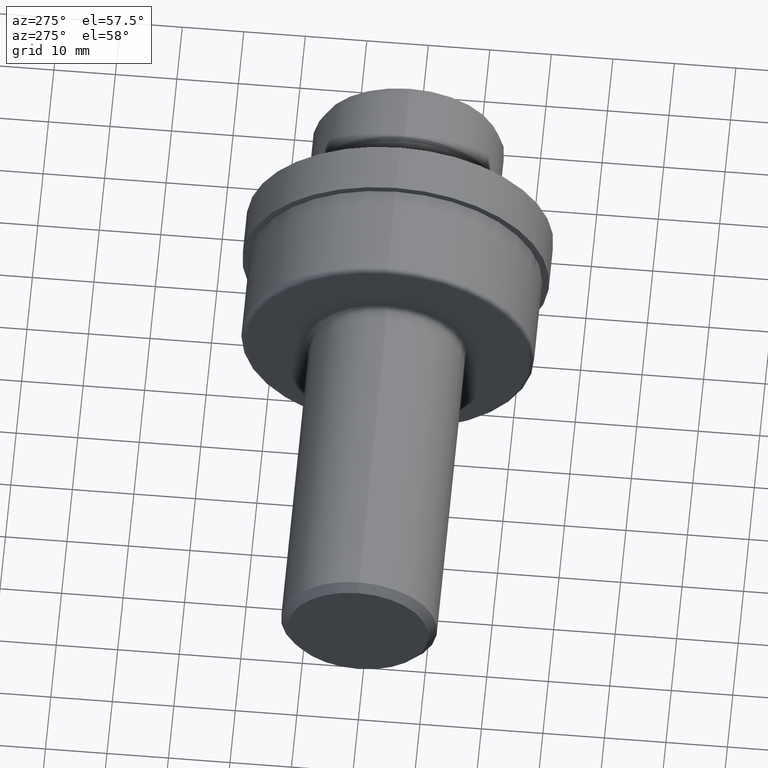
[diagram: clean part render]
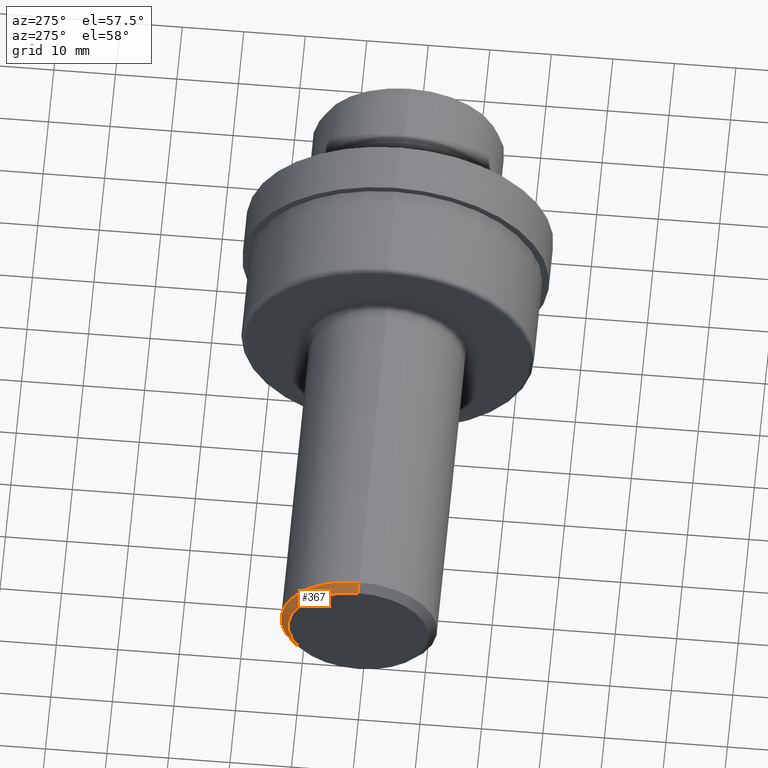
[diagram: same view with one face highlighted and labeled with its STEP entity id]
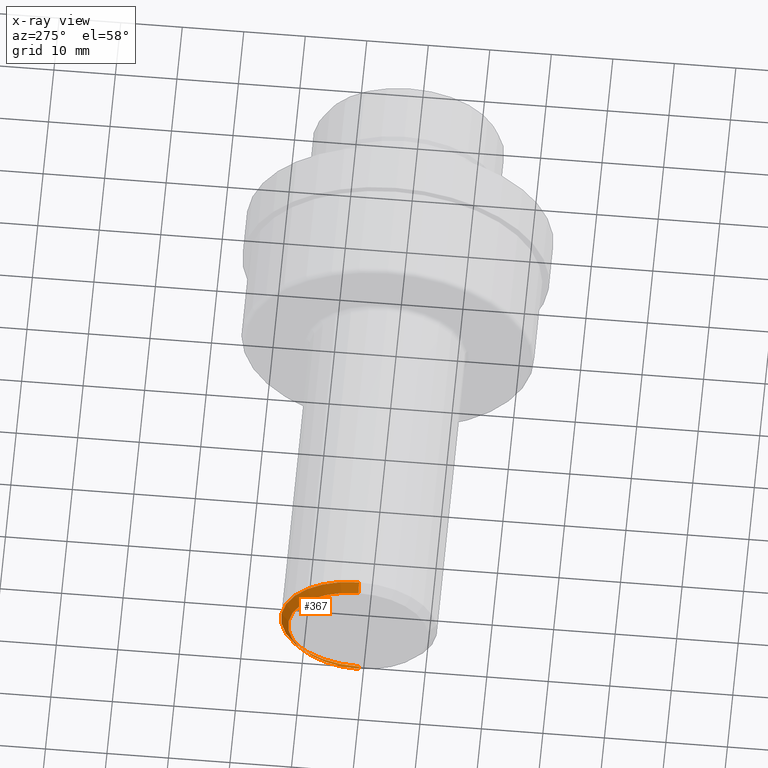
[diagram: x-ray of the same camera — body ghosted, the highlighted face saturated]
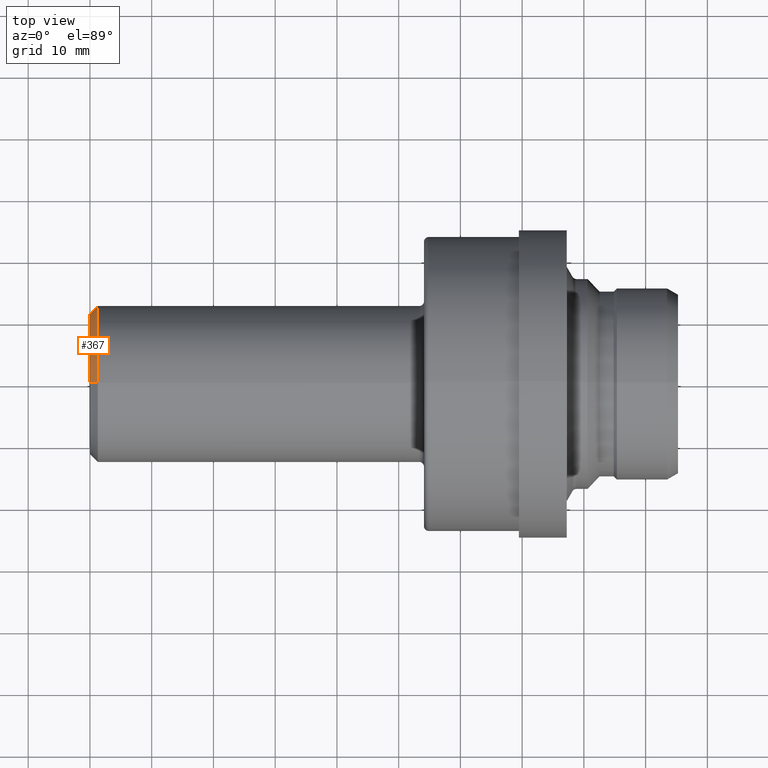
[diagram: same view with one face highlighted and labeled with its STEP entity id]
A machine part, auxiliary view. The second image highlights one B-rep face of the part: STEP entity #367.
The next image is the same camera in x-ray: the body ghosted, the highlighted face saturated — about 0% of this face is hidden behind the body in this view.
A second angle (top view) of the same face is appended — the face is thin or edge-on in the first view.
In plain terms, the highlighted conical surface has half-angle 45 deg.
Its self-contained STEP definition (entity closure, byte-faithful):
#41 = DIRECTION ( 'NONE',  ( 0.0000000000000000000, 0.0000000000000000000, 1.000000000000000000 ) ) ;
#65 = CONICAL_SURFACE ( 'NONE', #737, 0.4998500000000000165, 0.7853981633974463916 ) ;
#115 = VERTEX_POINT ( 'NONE', #545 ) ;
#135 = DIRECTION ( 'NONE',  ( 0.0000000000000000000, 0.0000000000000000000, 1.000000000000000000 ) ) ;
#141 = CARTESIAN_POINT ( 'NONE',  ( 0.05000000000000000278, 0.0000000000000000000, 0.0000000000000000000 ) ) ;
#151 = CARTESIAN_POINT ( 'NONE',  ( 0.0000000000000000000, 0.0000000000000000000, -0.4498500000000001942 ) ) ;
#157 = DIRECTION ( 'NONE',  ( -1.000000000000000000, -0.0000000000000000000, -0.0000000000000000000 ) ) ;
#179 = DIRECTION ( 'NONE',  ( -1.000000000000000000, -0.0000000000000000000, -0.0000000000000000000 ) ) ;
#235 = DIRECTION ( 'NONE',  ( 1.000000000000000000, 0.0000000000000000000, 0.0000000000000000000 ) ) ;
#247 = ORIENTED_EDGE ( 'NONE', *, *, #893, .F. ) ;
#264 = ORIENTED_EDGE ( 'NONE', *, *, #727, .T. ) ;
#265 = ORIENTED_EDGE ( 'NONE', *, *, #744, .F. ) ;
#289 = CIRCLE ( 'NONE', #865, 0.4498500000000001942 ) ;
#303 = DIRECTION ( 'NONE',  ( 0.0000000000000000000, 0.0000000000000000000, -1.000000000000000000 ) ) ;
#325 = ORIENTED_EDGE ( 'NONE', *, *, #410, .T. ) ;
#367 = ADVANCED_FACE ( 'NONE', ( #605 ), #65, .T. ) ;
#410 = EDGE_CURVE ( 'NONE', #469, #115, #482, .T. ) ;
#437 = VECTOR ( 'NONE', #650, 39.37007874015748143 ) ;
#466 = VERTEX_POINT ( 'NONE', #536 ) ;
#469 = VERTEX_POINT ( 'NONE', #567 ) ;
#482 = LINE ( 'NONE', #850, #437 ) ;
#483 = CIRCLE ( 'NONE', #655, 0.4998500000000000165 ) ;
#536 = CARTESIAN_POINT ( 'NONE',  ( 0.05000000000000000278, 6.121397025538045565E-17, -0.4998500000000000165 ) ) ;
#545 = CARTESIAN_POINT ( 'NONE',  ( 0.05000000000000000278, 0.0000000000000000000, 0.4998500000000000165 ) ) ;
#564 = LINE ( 'NONE', #758, #892 ) ;
#567 = CARTESIAN_POINT ( 'NONE',  ( 0.0000000000000000000, 5.815235325751207941E-17, 0.4498500000000001942 ) ) ;
#605 = FACE_OUTER_BOUND ( 'NONE', #816, .T. ) ;
#650 = DIRECTION ( 'NONE',  ( 0.7071067811865489050, 8.659560562354915602E-17, 0.7071067811865461294 ) ) ;
#655 = AXIS2_PLACEMENT_3D ( 'NONE', #705, #157, #135 ) ;
#676 = VERTEX_POINT ( 'NONE', #151 ) ;
#705 = CARTESIAN_POINT ( 'NONE',  ( 0.05000000000000000278, 0.0000000000000000000, 0.0000000000000000000 ) ) ;
#727 = EDGE_CURVE ( 'NONE', #115, #466, #483, .T. ) ;
#737 = AXIS2_PLACEMENT_3D ( 'NONE', #141, #235, #303 ) ;
#744 = EDGE_CURVE ( 'NONE', #469, #676, #289, .T. ) ;
#758 = CARTESIAN_POINT ( 'NONE',  ( 0.05000000000000000278, 0.0000000000000000000, -0.4998500000000000165 ) ) ;
#816 = EDGE_LOOP ( 'NONE', ( #265, #325, #264, #247 ) ) ;
#850 = CARTESIAN_POINT ( 'NONE',  ( 0.05000000000000000278, 6.121397025538045565E-17, 0.4998500000000000165 ) ) ;
#865 = AXIS2_PLACEMENT_3D ( 'NONE', #885, #179, #41 ) ;
#885 = CARTESIAN_POINT ( 'NONE',  ( 0.0000000000000000000, 0.0000000000000000000, 0.0000000000000000000 ) ) ;
#890 = DIRECTION ( 'NONE',  ( 0.7071067811865489050, 0.0000000000000000000, -0.7071067811865461294 ) ) ;
#892 = VECTOR ( 'NONE', #890, 39.37007874015748143 ) ;
#893 = EDGE_CURVE ( 'NONE', #676, #466, #564, .T. ) ;